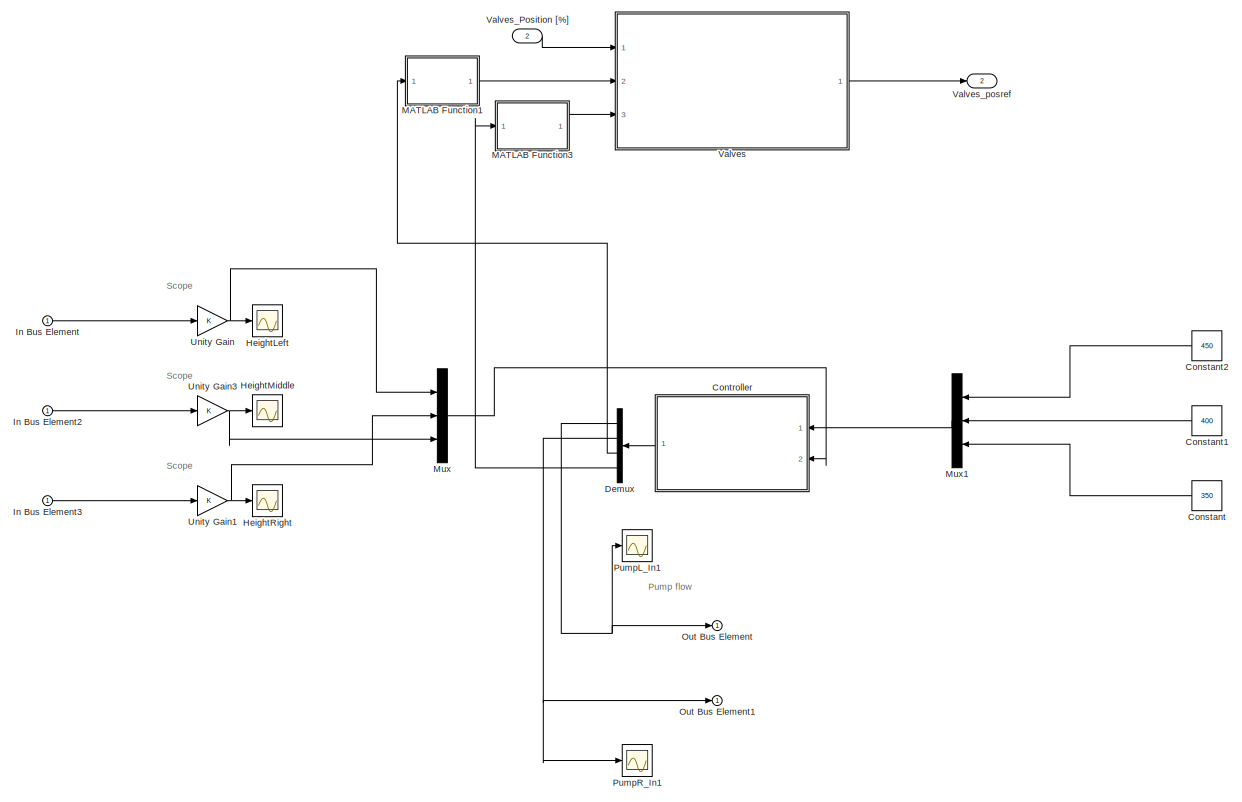
[diagram: root canvas - part 1/2, most of the canvas]
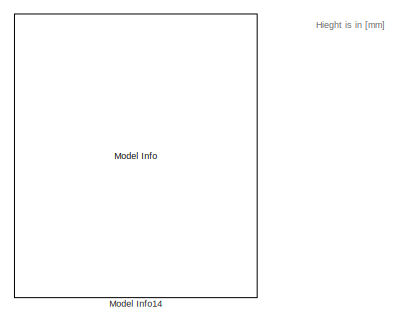
[diagram: root canvas - part 2/2, middle left region]
MODEL slx_b1e3b09199a5
KIND model
CONFIG AbsTol = auto
CONFIG EnableMultiTasking = off
CONFIG FixedStep = Ts
CONFIG MaxStep = auto
CONFIG MinStep = auto
CONFIG PostLoadFcn = if any(exist('dsrtsu_mdlpostloadfcn', 'file') ~= 0), dsrtsu_mdlpostloadfcn('Execute', bdroot); end
CONFIG RelTol = 1e-3
CONFIG SampleTimeConstraint = Unconstrained
CONFIG Solver = VariableStepAuto
CONFIG SolverName = VariableStepAuto
CONFIG StartTime = 0.0
CONFIG StopTime = 10.0
BLOCK [Constant] Constant
  SampleTime = 0.1
  Value = 350
BLOCK [Constant] Constant1
  SampleTime = 0.1
  Value = 400
BLOCK [Constant] Constant2
  SampleTime = 0.1
  Value = 450
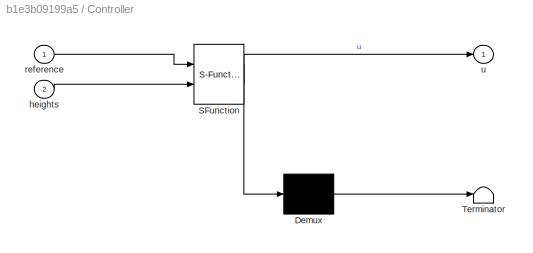
BLOCK [SubSystem] Controller
  ErrorFcn = Stateflow.Translate.translate
  PermitHierarchicalResolution = ExplicitOnly
  Ports = [2, 1]
  SFBlockType = MATLAB Function
  TreatAsAtomicUnit = on
BLOCK [Demux] Controller/ Demux 
  Outputs = 1
  Ports = [1, 1]
BLOCK [S-Function] Controller/ SFunction 
  EnableBusSupport = off
  FunctionName = sf_sfun
  PortCounts = [2 2]
  Ports = [2, 2]
  SFcnIsStateOwnerBlock = off
  SFunctionDeploymentMode = off
  Tag = Stateflow S-Function 2
BLOCK [Terminator] Controller/ Terminator 
BLOCK [Inport] Controller/heights
  Port = 2
BLOCK [Inport] Controller/reference
BLOCK [Outport] Controller/u
BLOCK [Demux] Demux
  Ports = [1, 4]
BLOCK [Scope] HeightLeft
  Floating = off
  NumInputPorts = 1
  Ports = [1]
  ScopeSpecificationString = Simulink.scopes.TimeScopeBlockCfg('CurrentConfiguration', extmgr.ConfigurationSet(extmgr.Configuration('Core','General UI',true),extmgr.Configuration('Core','Source UI',true),extmgr.Configuration('Sources','WiredSimulink',true),extmgr.Configuration('Visuals','Time Domain',true,'SerializedDisplays',{struct('MinYLimReal','-465895.78832','MaxYLimReal','4193062.09487','YLabelReal','','MinYLimMag','   ...<+1389ch>
BLOCK [Scope] HeightMiddle
  Floating = off
  NumInputPorts = 1
  Ports = [1]
  ScopeSpecificationString = Simulink.scopes.TimeScopeBlockCfg('CurrentConfiguration', extmgr.ConfigurationSet(extmgr.Configuration('Core','General UI',true),extmgr.Configuration('Core','Source UI',true),extmgr.Configuration('Sources','WiredSimulink',true,'DataLoggingVariableName','ScopeData1'),extmgr.Configuration('Visuals','Time Domain',true,'SerializedDisplays',{struct('MinYLimReal','-465895.78832','MaxYLimReal','4193062.0...<+1428ch>
BLOCK [Scope] HeightRight
  Floating = off
  NumInputPorts = 1
  Ports = [1]
  ScopeSpecificationString = Simulink.scopes.TimeScopeBlockCfg('CurrentConfiguration', extmgr.ConfigurationSet(extmgr.Configuration('Core','General UI',true),extmgr.Configuration('Core','Source UI',true),extmgr.Configuration('Sources','WiredSimulink',true,'DataLoggingVariableName','ScopeData2'),extmgr.Configuration('Visuals','Time Domain',true,'SerializedDisplays',{struct('MinYLimReal','-465895.78832','MaxYLimReal','4193062.0...<+1428ch>
BLOCK [Inport] In Bus Element
BLOCK [Inport] In Bus Element2
BLOCK [Inport] In Bus Element3
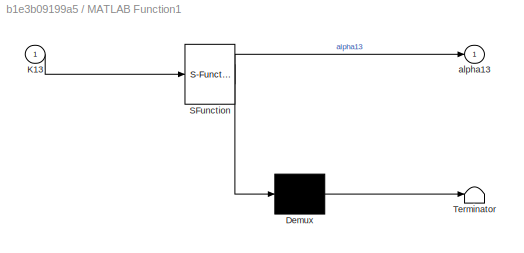
BLOCK [SubSystem] MATLAB Function1
  ErrorFcn = Stateflow.Translate.translate
  PermitHierarchicalResolution = ExplicitOnly
  Ports = [1, 1]
  SFBlockType = MATLAB Function
  TreatAsAtomicUnit = on
BLOCK [Demux] MATLAB Function1/ Demux 
  Outputs = 1
  Ports = [1, 1]
BLOCK [S-Function] MATLAB Function1/ SFunction 
  EnableBusSupport = off
  FunctionName = sf_sfun
  PortCounts = [1 2]
  Ports = [1, 2]
  SFcnIsStateOwnerBlock = off
  SFunctionDeploymentMode = off
  Tag = Stateflow S-Function 1
BLOCK [Terminator] MATLAB Function1/ Terminator 
BLOCK [Inport] MATLAB Function1/K13
BLOCK [Outport] MATLAB Function1/alpha13
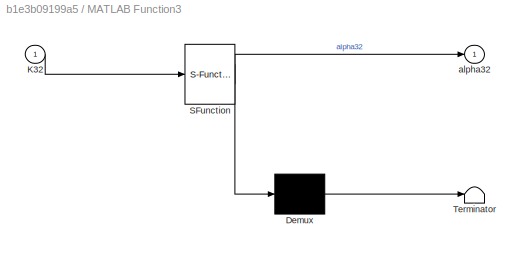
BLOCK [SubSystem] MATLAB Function3
  ErrorFcn = Stateflow.Translate.translate
  PermitHierarchicalResolution = ExplicitOnly
  Ports = [1, 1]
  SFBlockType = MATLAB Function
  TreatAsAtomicUnit = on
BLOCK [Demux] MATLAB Function3/ Demux 
  Outputs = 1
  Ports = [1, 1]
BLOCK [S-Function] MATLAB Function3/ SFunction 
  EnableBusSupport = off
  FunctionName = sf_sfun
  PortCounts = [1 2]
  Ports = [1, 2]
  SFcnIsStateOwnerBlock = off
  SFunctionDeploymentMode = off
  Tag = Stateflow S-Function 4
BLOCK [Terminator] MATLAB Function3/ Terminator 
BLOCK [Inport] MATLAB Function3/K32
BLOCK [Outport] MATLAB Function3/alpha32
BLOCK [Reference] Model Info14  REF=simulink/Model-Wide
Utilities/Model Info
  Ports = []
  SourceBlock = simulink/Model-Wide\nUtilities/Model Info
  SourceType = CMBlock
BLOCK [Mux] Mux
  DisplayOption = bar
  Inputs = 3
  Ports = [3, 1]
BLOCK [Mux] Mux1
  DisplayOption = bar
  Inputs = 3
  Ports = [3, 1]
BLOCK [Outport] Out Bus Element
  VectorParamsAs1DForOutWhenUnconnected = off
BLOCK [Outport] Out Bus Element1
  VectorParamsAs1DForOutWhenUnconnected = off
BLOCK [Scope] PumpL_In1
  Floating = off
  NumInputPorts = 1
  Ports = [1]
  ScopeSpecificationString = Simulink.scopes.TimeScopeBlockCfg('CurrentConfiguration', extmgr.ConfigurationSet(extmgr.Configuration('Core','General UI',true),extmgr.Configuration('Core','Source UI',true),extmgr.Configuration('Sources','WiredSimulink',true,'DataLoggingVariableName','ScopeData1'),extmgr.Configuration('Visuals','Time Domain',true),extmgr.Configuration('Tools','Plot Navigation',true),extmgr.Configuration('Tools',...<+40ch>
BLOCK [Scope] PumpR_In1
  Floating = off
  NumInputPorts = 1
  Ports = [1]
  ScopeSpecificationString = Simulink.scopes.TimeScopeBlockCfg('CurrentConfiguration', extmgr.ConfigurationSet(extmgr.Configuration('Core','General UI',true),extmgr.Configuration('Core','Source UI',true),extmgr.Configuration('Sources','WiredSimulink',true,'DataLoggingVariableName','ScopeData2'),extmgr.Configuration('Visuals','Time Domain',true),extmgr.Configuration('Tools','Plot Navigation',true),extmgr.Configuration('Tools',...<+40ch>
BLOCK [Gain] Unity Gain
BLOCK [Gain] Unity Gain1
BLOCK [Gain] Unity Gain3
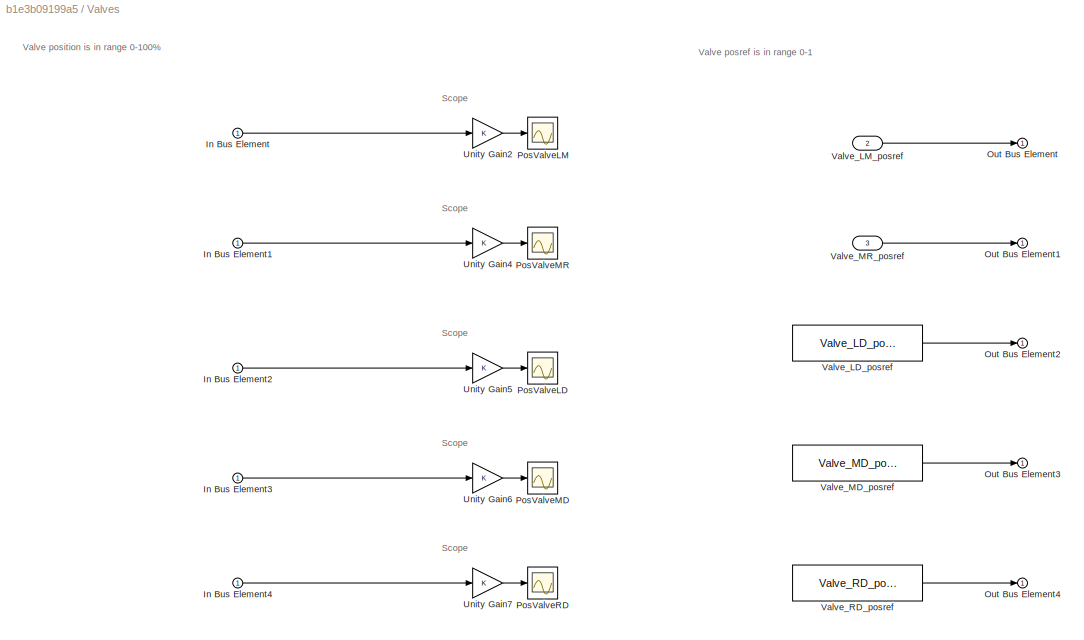
BLOCK [SubSystem] Valves
  Ports = [3, 1]
  TreatAsAtomicUnit = on
BLOCK [Inport] Valves/In Bus Element
BLOCK [Inport] Valves/In Bus Element1
BLOCK [Inport] Valves/In Bus Element2
BLOCK [Inport] Valves/In Bus Element3
BLOCK [Inport] Valves/In Bus Element4
BLOCK [Outport] Valves/Out Bus Element
BLOCK [Outport] Valves/Out Bus Element1
BLOCK [Outport] Valves/Out Bus Element2
BLOCK [Outport] Valves/Out Bus Element3
BLOCK [Outport] Valves/Out Bus Element4
BLOCK [Scope] Valves/PosValveLD
  Floating = off
  NumInputPorts = 1
  Ports = [1]
  ScopeSpecificationString = Simulink.scopes.TimeScopeBlockCfg('CurrentConfiguration', extmgr.ConfigurationSet(extmgr.Configuration('Core','General UI',true),extmgr.Configuration('Core','Source UI',true),extmgr.Configuration('Sources','WiredSimulink',true,'DataLoggingVariableName','ScopeData1'),extmgr.Configuration('Visuals','Time Domain',true,'SerializedDisplays',{struct('MinYLimReal','-1.00000','MaxYLimReal','1.00000','YLab...<+1386ch>
BLOCK [Scope] Valves/PosValveLM
  Floating = off
  NumInputPorts = 1
  Ports = [1]
  ScopeSpecificationString = Simulink.scopes.TimeScopeBlockCfg('CurrentConfiguration', extmgr.ConfigurationSet(extmgr.Configuration('Core','General UI',true),extmgr.Configuration('Core','Source UI',true),extmgr.Configuration('Sources','WiredSimulink',true,'DataLoggingVariableName','ScopeData2'),extmgr.Configuration('Visuals','Time Domain',true,'SerializedDisplays',{struct('MinYLimReal','-9.88333','MaxYLimReal','88.95','YLabel...<+1378ch>
BLOCK [Scope] Valves/PosValveMD
  Floating = off
  NumInputPorts = 1
  Ports = [1]
  ScopeSpecificationString = Simulink.scopes.TimeScopeBlockCfg('CurrentConfiguration', extmgr.ConfigurationSet(extmgr.Configuration('Core','General UI',true),extmgr.Configuration('Core','Source UI',true),extmgr.Configuration('Sources','WiredSimulink',true,'DataLoggingVariableName','ScopeData3'),extmgr.Configuration('Visuals','Time Domain',true,'SerializedDisplays',{struct('MinYLimReal','-8.625','MaxYLimReal','77.625','YLabelR...<+1378ch>
BLOCK [Scope] Valves/PosValveMR
  Floating = off
  NumInputPorts = 1
  Ports = [1]
  ScopeSpecificationString = Simulink.scopes.TimeScopeBlockCfg('CurrentConfiguration', extmgr.ConfigurationSet(extmgr.Configuration('Core','General UI',true),extmgr.Configuration('Core','Source UI',true),extmgr.Configuration('Sources','WiredSimulink',true,'DataLoggingVariableName','ScopeData4'),extmgr.Configuration('Visuals','Time Domain',true,'SerializedDisplays',{struct('MinYLimReal','-9.88333','MaxYLimReal','88.95','YLabel...<+1378ch>
BLOCK [Scope] Valves/PosValveRD
  Floating = off
  NumInputPorts = 1
  Ports = [1]
  ScopeSpecificationString = Simulink.scopes.TimeScopeBlockCfg('CurrentConfiguration', extmgr.ConfigurationSet(extmgr.Configuration('Core','General UI',true),extmgr.Configuration('Core','Source UI',true),extmgr.Configuration('Sources','WiredSimulink',true,'DataLoggingVariableName','ScopeData5'),extmgr.Configuration('Visuals','Time Domain',true,'SerializedDisplays',{struct('MinYLimReal','-1.00000','MaxYLimReal','1.00000','YLab...<+1386ch>
BLOCK [Gain] Valves/Unity Gain2
BLOCK [Gain] Valves/Unity Gain4
BLOCK [Gain] Valves/Unity Gain5
BLOCK [Gain] Valves/Unity Gain6
BLOCK [Gain] Valves/Unity Gain7
BLOCK [Constant] Valves/Valve_LD_posref
  Value = Valve_LD_posref
BLOCK [Inport] Valves/Valve_LM_posref
  Port = 2
BLOCK [Constant] Valves/Valve_MD_posref
  Value = Valve_MD_posref
BLOCK [Inport] Valves/Valve_MR_posref
  Port = 3
BLOCK [Constant] Valves/Valve_RD_posref
  Value = Valve_RD_posref
BLOCK [Inport] Valves_Position [%]
  OutDataTypeStr = Bus: ValvesSOCI
  Port = 2
BLOCK [Outport] Valves_posref
  OutDataTypeStr = Bus: ValveSICO
  Port = 2
ANNOTATION (root): Hieght is in [mm]
ANNOTATION (root): Pump flow
ANNOTATION (root): Scope
ANNOTATION Valves: Scope
ANNOTATION Valves: Valve position is in range 0-100%
ANNOTATION Valves: Valve posref is in range 0-1
LINE Constant1:1 -> Mux1:2
LINE Constant2:1 -> Mux1:1
LINE Constant:1 -> Mux1:3
LINE Controller:1 -> Demux:1
NET Demux:1 -> Out Bus Element:1, PumpL_In1:1
NET Demux:2 -> Out Bus Element1:1, PumpR_In1:1
LINE Demux:3 -> MATLAB Function1:1
LINE Demux:4 -> MATLAB Function3:1
LINE In Bus Element2:1 -> Unity Gain3:1
LINE In Bus Element3:1 -> Unity Gain1:1
LINE In Bus Element:1 -> Unity Gain:1
LINE MATLAB Function1:1 -> Valves:2
LINE MATLAB Function3:1 -> Valves:3
LINE Mux1:1 -> Controller:1
LINE Mux:1 -> Controller:2
NET Unity Gain1:1 -> HeightRight:1, Mux:2
NET Unity Gain3:1 -> HeightMiddle:1, Mux:3
NET Unity Gain:1 -> HeightLeft:1, Mux:1
LINE Valves/In Bus Element1:1 -> Valves/Unity Gain4:1
LINE Valves/In Bus Element2:1 -> Valves/Unity Gain5:1
LINE Valves/In Bus Element3:1 -> Valves/Unity Gain6:1
LINE Valves/In Bus Element4:1 -> Valves/Unity Gain7:1
LINE Valves/In Bus Element:1 -> Valves/Unity Gain2:1
LINE Valves/Unity Gain2:1 -> Valves/PosValveLM:1
LINE Valves/Unity Gain4:1 -> Valves/PosValveMR:1
LINE Valves/Unity Gain5:1 -> Valves/PosValveLD:1
LINE Valves/Unity Gain6:1 -> Valves/PosValveMD:1
LINE Valves/Unity Gain7:1 -> Valves/PosValveRD:1
LINE Valves/Valve_LD_posref:1 -> Valves/Out Bus Element2:1
LINE Valves/Valve_LM_posref:1 -> Valves/Out Bus Element:1
LINE Valves/Valve_MD_posref:1 -> Valves/Out Bus Element3:1
LINE Valves/Valve_MR_posref:1 -> Valves/Out Bus Element1:1
LINE Valves/Valve_RD_posref:1 -> Valves/Out Bus Element4:1
LINE Valves:1 -> Valves_posref:1
LINE Valves_Position [%]:1 -> Valves:1
note: NET lines group one-source signal fan-out (src -> all destinations, sorted); 1:1 wires keep LINE
CHART MATLAB Function1 states=1 transitions=1
  STATE_LABEL 'eML_blk_kernel()'
  STATE_LABEL 'SCRIPT:\nfunction alpha13 = KtoZ13(K13)\n% [0,0.24] -> [-50,50]\n    a13 = 2.409;\n    b13 = 9.583;\n    c13 = 4.241;\n    d13 = 9.07;\n    e13 = -0.01094;\n    temp = (a13/(K13-e13) -b13)/c13;\n    if temp < 0\n        temp = 1e-4;\n    end\n\n    alpha13 = log(temp)/-d13 + 0.5; %[0 ~ 1]\n%     alpha13 = alpha13*100;\n\nend\n\n'
CHART Controller states=1 transitions=1
  STATE_LABEL 'eML_blk_kernel()'
  STATE_LABEL 'SCRIPT:\nfunction u = Controller(reference, heights)\n\n% reference = [450, 400, 359]\n% height = [h1, h2, h3]\n% u = [p1, p2, k13, k32]\n\nK = [1.26583363863119\t0.0603891831825281\t0.700331838202608;\n0.0652453998465126\t1.21560150893254\t0.363852113183011;\n-0.0863846849137246\t0.0424057591826027\t0.494138459597246;\n0.0694700898243913\t-0.0849004586324254\t0.388724208913166];\n\nreference = [reference(1); referen...<+169ch>'
CHART MATLAB Function3 states=1 transitions=1
  STATE_LABEL 'eML_blk_kernel()'
  STATE_LABEL 'SCRIPT:\nfunction alpha32 = KtoZ32(K32)\n    a32 = -2.145;\n    b32 = -8.547;\n    c32 = -3.072;\n    d32 = 8.984;\n    e32 = -0.01151;\n    temp = (a32/(K32-e32) -b32)/c32;\n    if temp < 0\n        temp = 1e-4;\n    end\n    alpha32 = log(temp)/-d32 + 0.5;%[0 ~ 1]\n%     alpha32 = alpha32*100;\nend\n\n'
